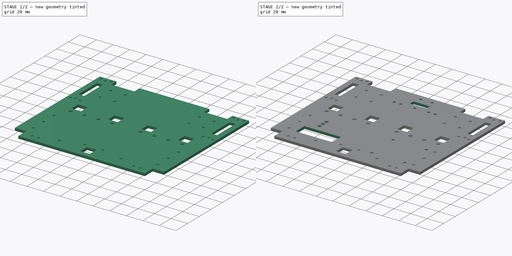
[diagram: build sequence overview — one tinted view per stage of 2, left to right]
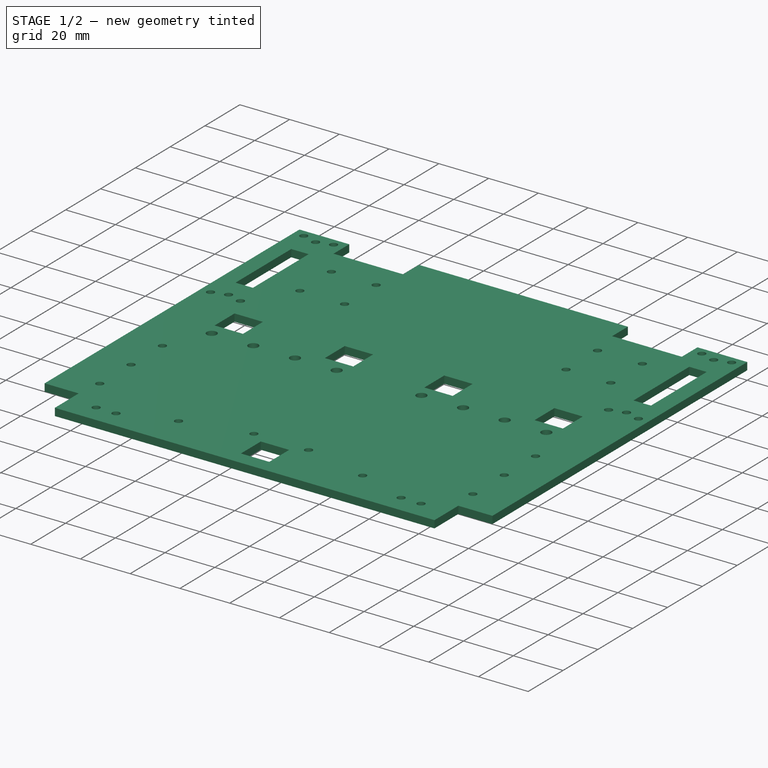
[diagram: stage 1 of 2 — iso view after this stage's code; geometry added in this stage tinted green]
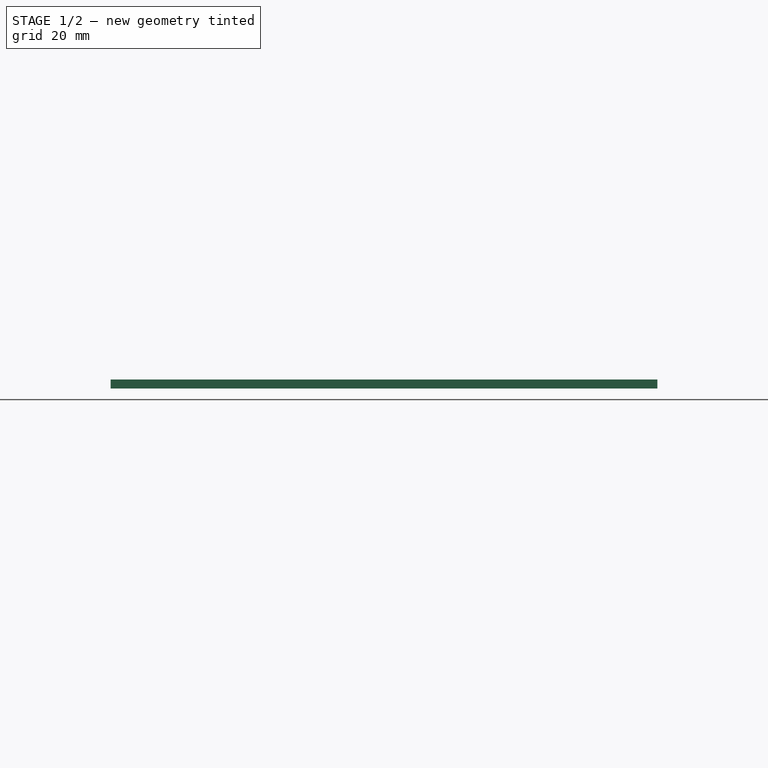
[diagram: stage 1 of 2 — front view after this stage's code; geometry added in this stage tinted green]
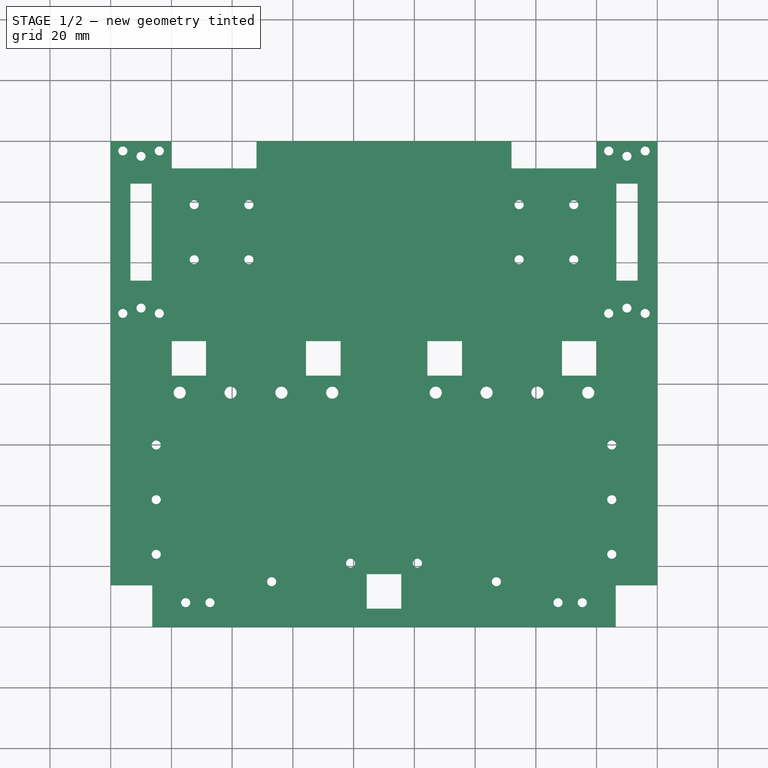
[diagram: stage 1 of 2 — top view after this stage's code; geometry added in this stage tinted green]
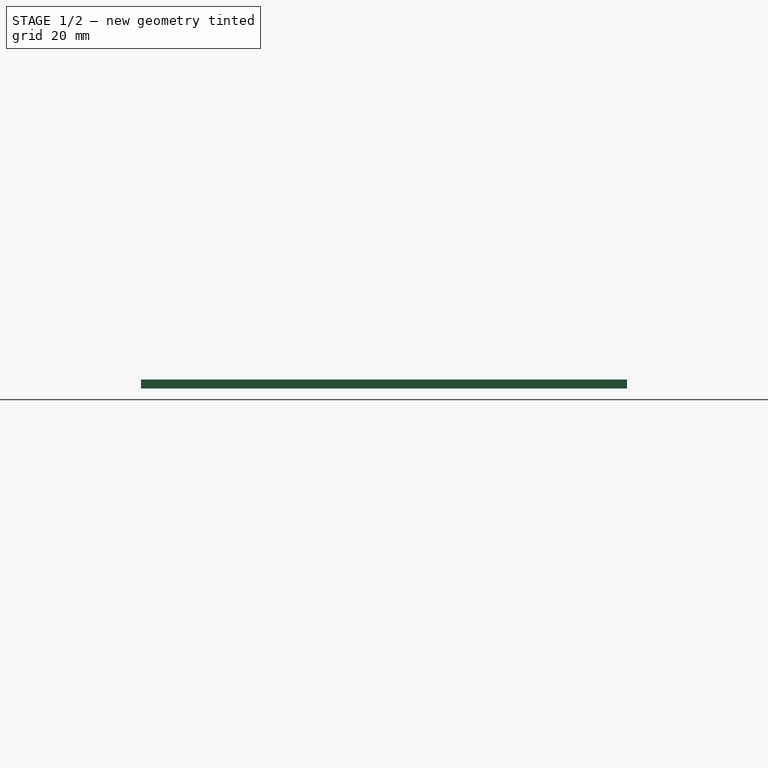
[diagram: stage 1 of 2 — right view after this stage's code; geometry added in this stage tinted green]
FCSTD DOCUMENT  (FreeCAD 0.16R6707 (Git))
Label: étage_haut
License: All rights reserved
LicenseURL: http://en.wikipedia.org/wiki/All_rights_reserved
objects: Drawing::FeatureViewPart×3, Sketcher::SketchObject×2, PartDesign::Pad×1, PartDesign::Mirrored×1, PartDesign::Pocket×1, Drawing::FeaturePage×1
note: 7 computed .brp shape members not serialized (recipe doc carries the construction recipe); baked Part::Feature solids carry a one-line shape summary decoded from their .brp

FEATURE [Sketcher::SketchObject] Sketch
  sketch-geometry (60):
    g0: GeomPoint [constr] X=10 Y=155 Z=0
    g1: GeomPoint [constr] X=10 Y=105 Z=0
    g2: Circle CenterX=10 CenterY=155 CenterZ=0 NormalX=0 NormalY=0 NormalZ=1 Radius=1.5
    g3: Circle CenterX=10 CenterY=105 CenterZ=0 NormalX=0 NormalY=0 NormalZ=1 Radius=1.5
    g4: LineSegment StartX=6.5 StartY=146 StartZ=0 EndX=13.5 EndY=146 EndZ=0
    g5: LineSegment StartX=13.5 StartY=146 StartZ=0 EndX=13.5 EndY=114 EndZ=0
    g6: LineSegment StartX=13.5 StartY=114 StartZ=0 EndX=6.5 EndY=114 EndZ=0
    g7: LineSegment StartX=6.5 StartY=114 StartZ=0 EndX=6.5 EndY=146 EndZ=0
    g8: GeomPoint [constr] X=27.5 Y=139.05 Z=0
    g9: GeomPoint [constr] X=45.5 Y=139.05 Z=0
    g10: GeomPoint [constr] X=27.5 Y=120.95 Z=0
    g11: GeomPoint [constr] X=45.5 Y=120.95 Z=0
    g12: GeomPoint [constr] X=16.5 Y=151.15 Z=0
    g13: GeomPoint [constr] X=16.5 Y=130 Z=0
    g14: Circle CenterX=27.5 CenterY=139.05 CenterZ=0 NormalX=0 NormalY=0 NormalZ=1 Radius=1.5
    g15: Circle CenterX=45.5 CenterY=139.05 CenterZ=0 NormalX=0 NormalY=0 NormalZ=1 Radius=1.5
    g16: Circle CenterX=27.5 CenterY=120.95 CenterZ=0 NormalX=0 NormalY=0 NormalZ=1 Radius=1.5
    g17: Circle CenterX=45.5 CenterY=120.95 CenterZ=0 NormalX=0 NormalY=0 NormalZ=1 Radius=1.5
    g18: GeomPoint [constr] X=0 Y=153.5 Z=0
    g19: Circle CenterX=4 CenterY=156.75 CenterZ=0 NormalX=0 NormalY=0 NormalZ=1 Radius=1.5
    g20: Circle CenterX=16 CenterY=156.75 CenterZ=0 NormalX=0 NormalY=0 NormalZ=1 Radius=1.5
    g21: GeomPoint [constr] X=20 Y=153.5 Z=0
    g22: GeomPoint [constr] X=0 Y=106.5 Z=0
    g23: GeomPoint [constr] X=20 Y=106.5 Z=0
    g24: Circle CenterX=4 CenterY=103.25 CenterZ=0 NormalX=0 NormalY=0 NormalZ=1 Radius=1.5
    g25: Circle CenterX=16 CenterY=103.25 CenterZ=0 NormalX=0 NormalY=0 NormalZ=1 Radius=1.5
    g26: LineSegment StartX=90 StartY=160 StartZ=0 EndX=90 EndY=17.4 EndZ=0
    g27: LineSegment StartX=90 StartY=17.4 StartZ=0 EndX=84.3 EndY=17.4 EndZ=0
    g28: LineSegment StartX=84.3 StartY=17.4 StartZ=0 EndX=84.3 EndY=6 EndZ=0
    g29: LineSegment StartX=20 StartY=94.15 StartZ=0 EndX=31.4 EndY=94.15 EndZ=0
    g30: LineSegment StartX=31.4 StartY=94.15 StartZ=0 EndX=31.4 EndY=82.75 EndZ=0
    g31: LineSegment StartX=31.4 StartY=82.75 StartZ=0 EndX=20 EndY=82.75 EndZ=0
    g32: LineSegment StartX=20 StartY=82.75 StartZ=0 EndX=20 EndY=94.15 EndZ=0
    g33: LineSegment StartX=64.3 StartY=94.15 StartZ=0 EndX=75.7 EndY=94.15 EndZ=0
    g34: LineSegment StartX=75.7 StartY=94.15 StartZ=0 EndX=75.7 EndY=82.75 EndZ=0
    g35: LineSegment StartX=75.7 StartY=82.75 StartZ=0 EndX=64.3 EndY=82.75 EndZ=0
    g36: LineSegment StartX=64.3 StartY=82.75 StartZ=0 EndX=64.3 EndY=94.15 EndZ=0
    g37: LineSegment StartX=84.3 StartY=6 StartZ=0 EndX=90 EndY=6 EndZ=0
    g38: LineSegment StartX=90 StartY=6 StartZ=0 EndX=90 EndY=0 EndZ=0
    g39: LineSegment StartX=90 StartY=0 StartZ=0 EndX=13.7 EndY=0 EndZ=0
    g40: LineSegment StartX=13.7 StartY=0 StartZ=0 EndX=13.7 EndY=13.7 EndZ=0
    g41: LineSegment StartX=13.7 StartY=13.7 StartZ=0 EndX=0 EndY=13.7 EndZ=0
    g42: LineSegment StartX=0 StartY=13.7 StartZ=0 EndX=0 EndY=160 EndZ=0
    g43: Circle CenterX=24.7 CenterY=8 CenterZ=0 NormalX=0 NormalY=0 NormalZ=1 Radius=1.5
    g44: Circle CenterX=32.7 CenterY=8 CenterZ=0 NormalX=0 NormalY=0 NormalZ=1 Radius=1.5
    g45: Circle CenterX=79 CenterY=21 CenterZ=0 NormalX=0 NormalY=0 NormalZ=1 Radius=1.5
    g46: Circle CenterX=22.74 CenterY=77.15 CenterZ=0 NormalX=0 NormalY=0 NormalZ=1 Radius=2
    g47: Circle CenterX=39.48 CenterY=77.15 CenterZ=0 NormalX=0 NormalY=0 NormalZ=1 Radius=2
    g48: Circle CenterX=56.22 CenterY=77.15 CenterZ=0 NormalX=0 NormalY=0 NormalZ=1 Radius=2
    g49: Circle CenterX=72.96 CenterY=77.15 CenterZ=0 NormalX=0 NormalY=0 NormalZ=1 Radius=2
    g50: Circle CenterX=53 CenterY=14.9 CenterZ=0 NormalX=0 NormalY=0 NormalZ=1 Radius=1.5
    g51: Circle CenterX=15 CenterY=59.91 CenterZ=0 NormalX=0 NormalY=0 NormalZ=1 Radius=1.5
    g52: Circle CenterX=15 CenterY=41.91 CenterZ=0 NormalX=0 NormalY=0 NormalZ=1 Radius=1.5
    g53: Circle CenterX=15 CenterY=23.91 CenterZ=0 NormalX=0 NormalY=0 NormalZ=1 Radius=1.5
    g54: GeomPoint [constr] X=55 Y=160 Z=0
    g55: LineSegment StartX=0 StartY=160 StartZ=0 EndX=20 EndY=160 EndZ=0
    g56: LineSegment StartX=20 StartY=160 StartZ=0 EndX=20 EndY=151 EndZ=0
    g57: LineSegment StartX=20 StartY=151 StartZ=0 EndX=48 EndY=151 EndZ=0
    g58: LineSegment StartX=48 StartY=151 StartZ=0 EndX=48 EndY=160 EndZ=0
    g59: LineSegment StartX=48 StartY=160 StartZ=0 EndX=90 EndY=160 EndZ=0
  constraints (161):
    c: DistanceX(g0,g1) = 0
    c: DistanceY(g1,g0) = 50
    c: DistanceX(g42,g0) = 10
    c: DistanceY(g0,g42) = 5
    c: Coincident(g2,g0)
    c: Coincident(g3,g1)
    c: Radius(g2) = 1.5
    c: Equal(g2,g3)
    c: Coincident(g4,g5)
    c: Coincident(g5,g6)
    c: Coincident(g6,g7)
    c: Coincident(g7,g4)
    c: Horizontal(g4)
    c: Horizontal(g6)
    c: Vertical(g5)
    c: Vertical(g7)
    c: DistanceX(g4) = 6.5
    c: DistanceY(g4,g42) = 14
    c: Distance(g7) = 32
    c: Distance(g6) = 7
    c: DistanceY(g9,g8) = 0
    c: DistanceY(g11,g10) = 0
    c: DistanceX(g8,g9) = 18
    c: DistanceX(g10,g11) = 18
    c: DistanceX(g8,g10) = 0
    c: DistanceY(g10,g8) = 18.1
    c: DistanceY(g8,g12) = 12.1
    c: DistanceX(g12,g8) = 11
    c: DistanceY(g13,g12) = 21.15
    c: DistanceX(g13,g12) = 0
    c: DistanceY(g13,g4) = 16
    c: Coincident(g14,g8)
    c: Coincident(g15,g9)
    c: Coincident(g16,g10)
    c: Coincident(g17,g11)
    c: Radius(g17) = 1.5
    c: Equal(g17,g15)
    c: Equal(g17,g14)
    c: Equal(g17,g16)
    c: DistanceX(g4,g13) = 3
    c: DistanceX(g18,g0) = 10
    c: DistanceY(g0,g18) = -1.5
    c: DistanceX(g18,g19) = 4
    c: DistanceY(g18,g19) = 3.25
    c: DistanceY(g20,g19) = 0
    c: DistanceY(g18,g21) = 0
    c: DistanceX(g18,g21) = 20
    c: DistanceX(g20,g21) = 4
    c: Radius(g19) = 1.5
    c: Equal(g19,g20)
    c: DistanceX(g22,g1) = 10
    c: DistanceY(g1,g22) = 1.5
    c: DistanceY(g23,g22) = 0
    c: DistanceX(g22,g23) = 20
    c: DistanceY(g25,g23) = 3.25
    c: DistanceX(g25,g23) = 4
    c: DistanceX(g22,g24) = 4
    c: DistanceY(g25,g24) = 0
    c: Radius(g24) = 1.5
    c: Equal(g24,g25)
    c: Vertical(g26)
    c: Coincident(g26,g27)
    c: Horizontal(g27)
    c: Coincident(g27,g28)
    c: Vertical(g28)
    c: Distance(g27) = 5.7
    c: Distance(g28) = 11.4
    c: Coincident(g29,g30)
    c: Coincident(g30,g31)
    c: Coincident(g31,g32)
    c: Coincident(g32,g29)
    c: Horizontal(g29)
    c: Horizontal(g31)
    c: Vertical(g30)
    c: Vertical(g32)
    c: Coincident(g33,g34)
    c: Coincident(g34,g35)
    c: Coincident(g35,g36)
    c: Coincident(g36,g33)
    c: Horizontal(g33)
    c: Horizontal(g35)
    c: Vertical(g34)
    c: Vertical(g36)
    c: Distance(g29) = 11.4
    c: Distance(g30) = 11.4
    c: Distance(g33) = 11.4
    c: Distance(g36) = 11.4
    c: DistanceX(g29,g33) = 32.9
    c: DistanceY(g33,g29) = 0
    c: DistanceX(g29) = 20
    c: Coincident(g28,g37)
    c: Horizontal(g37)
    c: Coincident(g37,g38)
    c: Vertical(g38)
    c: DistanceX(g26,g37) = 0
    c: DistanceY(g37) = 6
    c: DistanceY(g27,g34) = 65.35
    c: DistanceY(g42) = 160
    c: DistanceX(g42) = 0
    c: DistanceY(g38) = 0
    c: Coincident(g38,g39)
    c: Horizontal(g39)
    c: Coincident(g39,g40)
    c: Vertical(g40)
    c: Coincident(g40,g41)
    c: Horizontal(g41)
    c: Coincident(g42,g41)
    c: Vertical(g42)
    c: Distance(g41) = 13.7
    c: Distance(g40) = 13.7
    c: Radius(g44) = 1.5
    c: Equal(g44,g43)
    c: Equal(g44,g45)
    c: DistanceY(g43,g44) = 0
    c: DistanceX(g43,g44) = 8
    c: DistanceX(g40,g43) = 11
    c: DistanceY(g43,g40) = 5.7
    c: DistanceX(g45,g27) = 5.3
    c: Radius(g49) = 2
    c: Equal(g49,g48)
    c: Equal(g49,g47)
    c: Equal(g49,g46)
    c: DistanceY(g46,g47) = 0
    c: DistanceY(g47,g48) = 0
    c: DistanceY(g48,g49) = 0
    c: DistanceX(g46,g47) = 16.74
    c: DistanceX(g47,g48) = 16.74
    c: DistanceX(g48,g49) = 16.74
    c: DistanceX(g46) = 22.74
    c: DistanceY(g46,g29) = 17
    c: DistanceY(g28,g45) = 15
    c: DistanceX(g52,g51) = 0
    c: DistanceX(g52,g53) = 0
    c: DistanceY(g50) = 14.9
    c: DistanceX(g40,g50) = 39.3
    c: Radius(g51) = 1.5
    c: Equal(g51,g52)
    c: Equal(g51,g53)
    c: Equal(g51,g50)
    c: DistanceX(g53) = 15
    c: DistanceY(g40,g53) = 10.21
    c: DistanceY(g53,g52) = 18
    c: DistanceY(g52,g51) = 18
    c: DistanceY(g54,g42) = 0
    c: DistanceX(g54) = 55
    c: DistanceX(g26) = 90
    c: DistanceY(g26) = 160
    c: Coincident(g42,g55)
    c: Horizontal(g55)
    c: Coincident(g55,g56)
    c: Vertical(g56)
    c: Coincident(g56,g57)
    c: Horizontal(g57)
    c: Coincident(g57,g58)
    c: Vertical(g58)
    c: Coincident(g58,g59)
    c: Coincident(g59,g26)
    c: Horizontal(g59)
    c: DistanceX(g57) = 48
    c: Distance(g58) = 9
    c: Distance(g55) = 20
FEATURE [PartDesign::Pad] Pad
  Length = 3
  Length2 = 100
  Sketch = -> Sketch
  Type = 0
FEATURE [PartDesign::Mirrored] Mirrored
  MirrorPlane = -> Pad [Face1]
  Originals = -> [Pad]
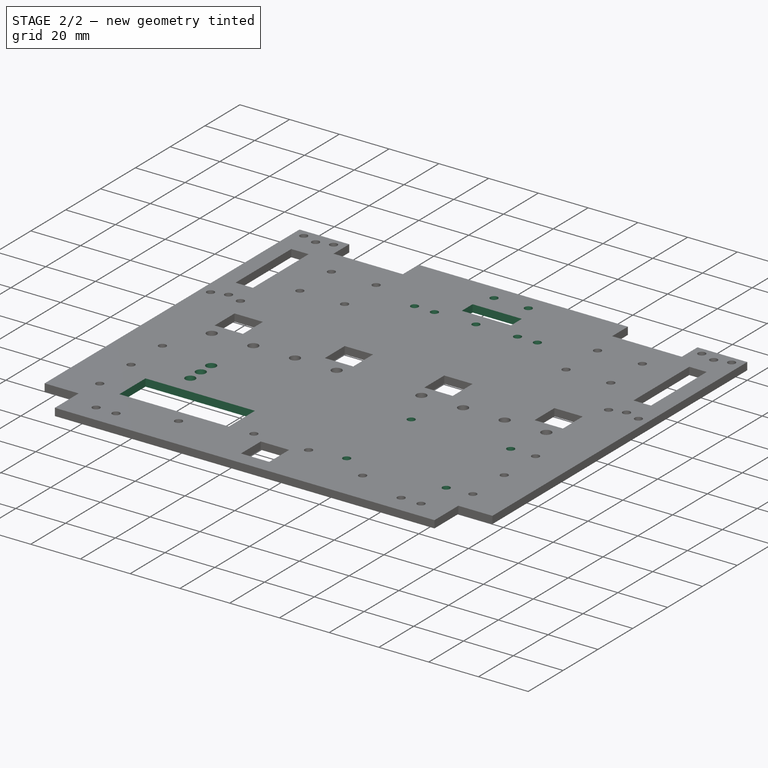
[diagram: stage 2 of 2 — iso view after this stage's code; geometry added in this stage tinted green]
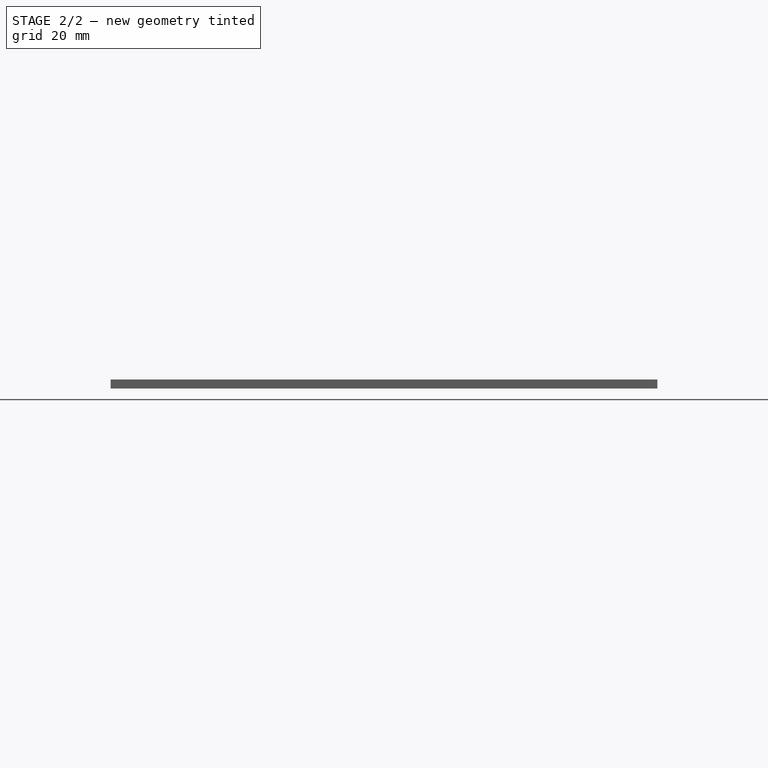
[diagram: stage 2 of 2 — front view after this stage's code; geometry added in this stage tinted green]
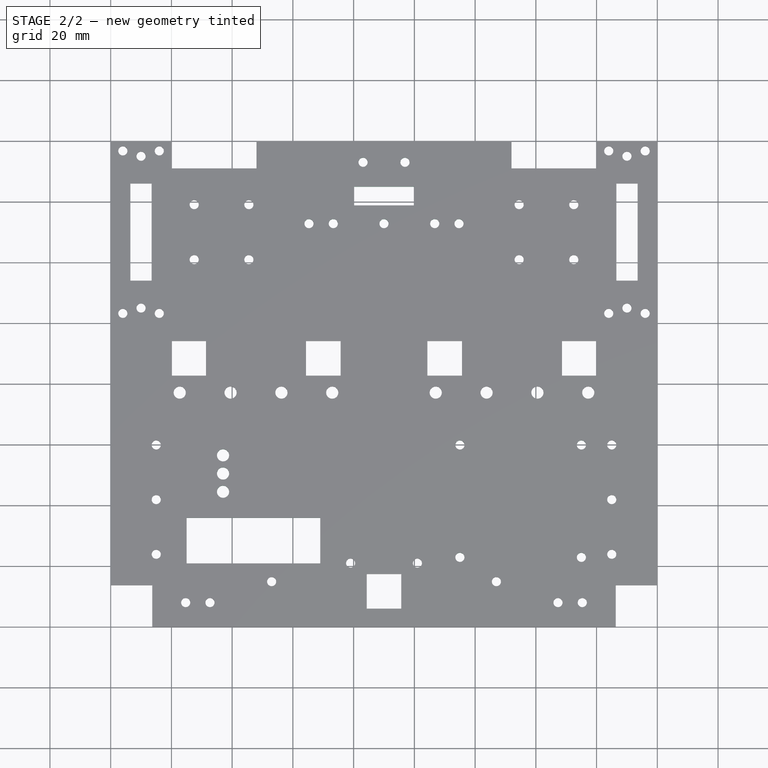
[diagram: stage 2 of 2 — top view after this stage's code; geometry added in this stage tinted green]
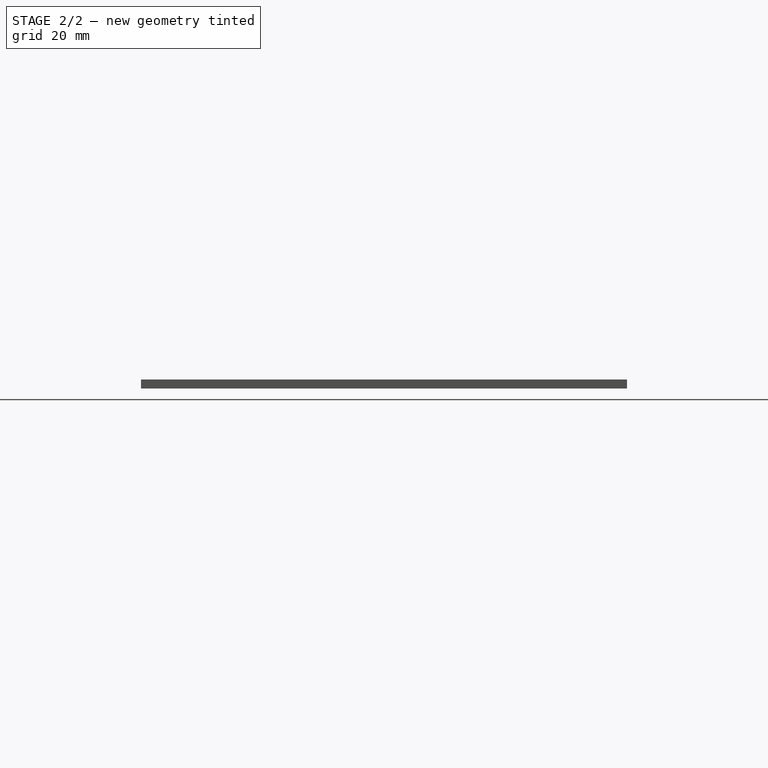
[diagram: stage 2 of 2 — right view after this stage's code; geometry added in this stage tinted green]
FEATURE [Sketcher::SketchObject] Sketch001
  Placement = pos=(0,0,3) rot=(0,0,1;0rad)
  Support = -> Mirrored [Face5]
  sketch-geometry (35):
    g0: Circle CenterX=90 CenterY=132.8 CenterZ=0 NormalX=0 NormalY=0 NormalZ=1 Radius=1.5
    g1: GeomPoint [constr] X=90 Y=160 Z=0
    g2: Circle CenterX=106.7 CenterY=132.8 CenterZ=0 NormalX=0 NormalY=0 NormalZ=1 Radius=1.5
    g3: Circle CenterX=114.7 CenterY=132.8 CenterZ=0 NormalX=0 NormalY=0 NormalZ=1 Radius=1.5
    g4: Circle CenterX=73.3 CenterY=132.8 CenterZ=0 NormalX=0 NormalY=0 NormalZ=1 Radius=1.5
    g5: Circle CenterX=65.3 CenterY=132.8 CenterZ=0 NormalX=0 NormalY=0 NormalZ=1 Radius=1.5
    g6: Circle CenterX=96.9 CenterY=153 CenterZ=0 NormalX=0 NormalY=0 NormalZ=1 Radius=1.5
    g7: Circle CenterX=83.1 CenterY=153 CenterZ=0 NormalX=0 NormalY=0 NormalZ=1 Radius=1.5
    g8: LineSegment StartX=80.1 StartY=145 StartZ=0 EndX=99.9 EndY=145 EndZ=0
    g9: LineSegment StartX=99.9 StartY=145 StartZ=0 EndX=99.9 EndY=138.8 EndZ=0
    g10: LineSegment StartX=99.9 StartY=138.8 StartZ=0 EndX=80.1 EndY=138.8 EndZ=0
    g11: LineSegment StartX=80.1 StartY=138.8 StartZ=0 EndX=80.1 EndY=145 EndZ=0
    g12: LineSegment StartX=25 StartY=35.9 StartZ=0 EndX=69 EndY=35.9 EndZ=0
    g13: LineSegment StartX=69 StartY=35.9 StartZ=0 EndX=69 EndY=20.9 EndZ=0
    g14: LineSegment StartX=69 StartY=20.9 StartZ=0 EndX=25 EndY=20.9 EndZ=0
    g15: LineSegment StartX=25 StartY=20.9 StartZ=0 EndX=25 EndY=35.9 EndZ=0
    g16: GeomPoint [constr] X=90 Y=0 Z=0
    g17: Circle CenterX=37 CenterY=56.5 CenterZ=0 NormalX=0 NormalY=0 NormalZ=1 Radius=2
    g18: Circle CenterX=37 CenterY=50.5 CenterZ=0 NormalX=0 NormalY=0 NormalZ=1 Radius=2
    g19: Circle CenterX=37 CenterY=44.5 CenterZ=0 NormalX=0 NormalY=0 NormalZ=1 Radius=2
    g20: LineSegment [constr] StartX=34 StartY=40 StartZ=0 EndX=70 EndY=40 EndZ=0
    g21: LineSegment [constr] StartX=70 StartY=40 StartZ=0 EndX=70 EndY=61 EndZ=0
    g22: LineSegment [constr] StartX=70 StartY=61 StartZ=0 EndX=34 EndY=61 EndZ=0
    g23: LineSegment [constr] StartX=34 StartY=61 StartZ=0 EndX=34 EndY=40 EndZ=0
    g24: GeomPoint [constr] X=59.5 Y=35 Z=0
    g25: GeomPoint [constr] X=180 Y=0 Z=0
    g26: GeomPoint [constr] X=160 Y=17.9 Z=0
    g27: LineSegment [constr] StartX=160 StartY=17.9 StartZ=0 EndX=110 EndY=17.9 EndZ=0
    g28: LineSegment [constr] StartX=110 StartY=17.9 StartZ=0 EndX=110 EndY=64.9 EndZ=0
    g29: LineSegment [constr] StartX=110 StartY=64.9 StartZ=0 EndX=160 EndY=64.9 EndZ=0
    g30: LineSegment [constr] StartX=160 StartY=64.9 StartZ=0 EndX=160 EndY=17.9 EndZ=0
    g31: Circle CenterX=115 CenterY=59.9 CenterZ=0 NormalX=0 NormalY=0 NormalZ=1 Radius=1.5
    g32: Circle CenterX=155 CenterY=59.9 CenterZ=0 NormalX=0 NormalY=0 NormalZ=1 Radius=1.5
    g33: Circle CenterX=115 CenterY=22.9 CenterZ=0 NormalX=0 NormalY=0 NormalZ=1 Radius=1.5
    g34: Circle CenterX=155 CenterY=22.9 CenterZ=0 NormalX=0 NormalY=0 NormalZ=1 Radius=1.5
  constraints (99):
    c: DistanceY(g1) = 160
    c: DistanceX(g1) = 90
    c: DistanceX(g0,g1) = 0
    c: DistanceY(g0,g1) = 27.2
    c: DistanceX(g5,g4) = 8
    c: DistanceX(g4,g0) = 16.7
    c: DistanceX(g0,g2) = 16.7
    c: DistanceX(g2,g3) = 8
    c: DistanceY(g4,g5) = 0
    c: DistanceY(g0,g4) = 0
    c: DistanceY(g0,g2) = 0
    c: DistanceY(g2,g3) = 0
    c: Radius(g5) = 1.5
    c: Equal(g5,g4)
    c: Equal(g5,g0)
    c: Equal(g5,g2)
    c: Equal(g5,g3)
    c: DistanceY(g6,g7) = 0
    c: DistanceX(g7,g6) = 13.8
    c: DistanceX(g1,g6) = 6.9
    c: DistanceY(g6,g1) = 7
    c: Radius(g6) = 1.5
    c: Equal(g6,g7)
    c: Coincident(g8,g9)
    c: Coincident(g9,g10)
    c: Coincident(g10,g11)
    c: Coincident(g11,g8)
    c: Horizontal(g8)
    c: Horizontal(g10)
    c: Vertical(g9)
    c: Vertical(g11)
    c: Distance(g8) = 19.8
    c: Distance(g11) = 6.2
    c: DistanceX(g8,g1) = 9.9
    c: DistanceY(g8,g7) = 8
    c: Coincident(g12,g13)
    c: Coincident(g13,g14)
    c: Coincident(g14,g15)
    c: Coincident(g15,g12)
    c: Horizontal(g12)
    c: Horizontal(g14)
    c: Vertical(g13)
    c: Vertical(g15)
    c: Distance(g12) = 44
    c: Distance(g15) = 15
    c: DistanceY(g14) = 20.9
    c: DistanceX(g14) = 25
    c: PointOnObject(g16,g-1)
    c: DistanceX(g16) = 90
    c: Coincident(g20,g21)
    c: Coincident(g21,g22)
    c: Coincident(g22,g23)
    c: Coincident(g23,g20)
    c: Horizontal(g20)
    c: Horizontal(g22)
    c: Vertical(g21)
    c: Vertical(g23)
    c: DistanceX(g17,g18) = 0
    c: DistanceX(g18,g19) = 0
    c: DistanceY(g17,g18) = -6
    c: DistanceY(g18,g19) = -6
    c: Radius(g17) = 2
    c: Equal(g17,g18)
    c: Equal(g17,g19)
    c: Distance(g23) = 21
    c: Distance(g20) = 36
    c: DistanceY(g17,g22) = 4.5
    c: DistanceX(g22,g17) = 3
    c: DistanceY(g20) = 40
    c: DistanceY(g24,g21) = 26
    c: DistanceX(g24,g21) = 10.5
    c: DistanceX(g20,g16) = 20
    c: PointOnObject(g25,g-1)
    c: DistanceX(g25) = 180
    c: DistanceY(g25,g26) = 17.9
    c: DistanceX(g26,g25) = 20
    c: Coincident(g27,g28)
    c: Coincident(g28,g29)
    c: Coincident(g29,g30)
    c: Coincident(g30,g27)
    c: Horizontal(g27)
    c: Horizontal(g29)
    c: Vertical(g28)
    c: Vertical(g30)
    c: Coincident(g27,g26)
    c: Distance(g30) = 47
    c: Distance(g27) = 50
    c: DistanceX(g28,g31) = 5
    c: DistanceY(g31,g28) = 5
    c: DistanceY(g27,g33) = 5
    c: DistanceX(g27,g33) = 5
    c: DistanceX(g32,g29) = 5
    c: DistanceY(g32,g29) = 5
    c: DistanceX(g34,g26) = 5
    c: DistanceY(g26,g34) = 5
    c: Radius(g31) = 1.5
    c: Equal(g31,g32)
    c: Equal(g31,g33)
    c: Equal(g31,g34)
FEATURE [PartDesign::Pocket] Pocket
  Length = 5
  Sketch = -> Sketch001
  Type = 1
FEATURE [Drawing::FeatureViewPart] Ortho  label="Ortho_0_0"
  Direction = (1,0,0)
  HiddenWidth = 0.15
  LineWidth = 0.35
  Rotation = -90
  Scale = 0.75
  ShowHiddenLines = false
  ShowSmoothLines = false
  Source = -> Pocket
  Tolerance = 0.05
  ViewResult = <g id="Ortho_0_0"\n   transform="rotate(-90,58.3333,200.417) translate(58.3333,200.417) scale(0.75,0.75)"\n  >\n<g   stroke="rgb(0, 0, 0)"\n   stroke-width="0.466667"\n   stroke-linecap="butt"\n   stroke-linejoin="miter"\n   fill="none"\n   transform="scale(1,-1)"\n  >\n<path id= "1" d=" M 0 -160 L 3 -160 " />\n<path id= "2" d=" M 0 -160 L 3 -160 " />\n<path id= "3" d=" M 0 0 L 0 -13.7 " />\n<path id= "4" d=" M 0 -13.7 L 0 -160 " />\n<path id= "5" d=" M 3 0 L 3 -13.7 " />\n<path id= "6" d=" M 3 -13.7 L 3 -160 " />\n<path id= "7" d=" M 0 0 L 3 0 " />\n<path id= "8" d=" M 0 -13.7 L 3 -13.7 " />\n<path id= "9" d=" M 0 -160 L 3 -160 " />\n</g>\n</g>
  Visible = true
  X = 58.3333
  Y = 200.417
FEATURE [Drawing::FeatureViewPart] Ortho001  label="Ortho_0_1"
  Direction = (0,0,1)
  HiddenWidth = 0.15
  LineWidth = 0.35
  Rotation = 90
  Scale = 0.75
  ShowHiddenLines = false
  ShowSmoothLines = false
  Source = -> Pocket
  Tolerance = 0.05
  ViewResult = <blob: 5499 chars omitted>
  Visible = true
  X = 58.3333
  Y = 36.5833
FEATURE [Drawing::FeatureViewPart] Ortho002  label="Ortho_1_1"
  Direction = (0.57735,0.57735,0.57735)
  HiddenWidth = 0.15
  LineWidth = 0.35
  Rotation = 120
  Scale = 0.75
  ShowHiddenLines = false
  ShowSmoothLines = false
  Source = -> Pocket
  Tolerance = 0.05
  ViewResult = <blob: 18557 chars omitted>
  Visible = true
  X = 299.47
  Y = 52.9502
FEATURE [Drawing::FeaturePage] Page
  EditableTexts = AUTHOR NAME | CREATION DATE | SUPERVISOR NAME | CHECK DATE | SCALE | WEIGHT | NUMBER | SHEET | TITLE | SUBTITLE
  Group = -> [Ortho,Ortho001,Ortho002]
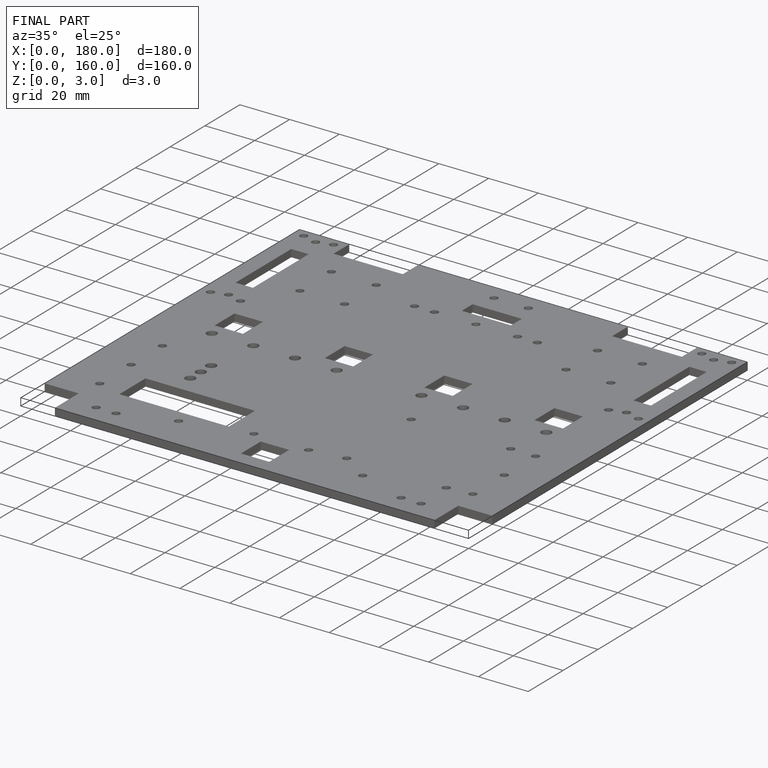
[diagram: finished part — iso view with bounding-box wireframe]
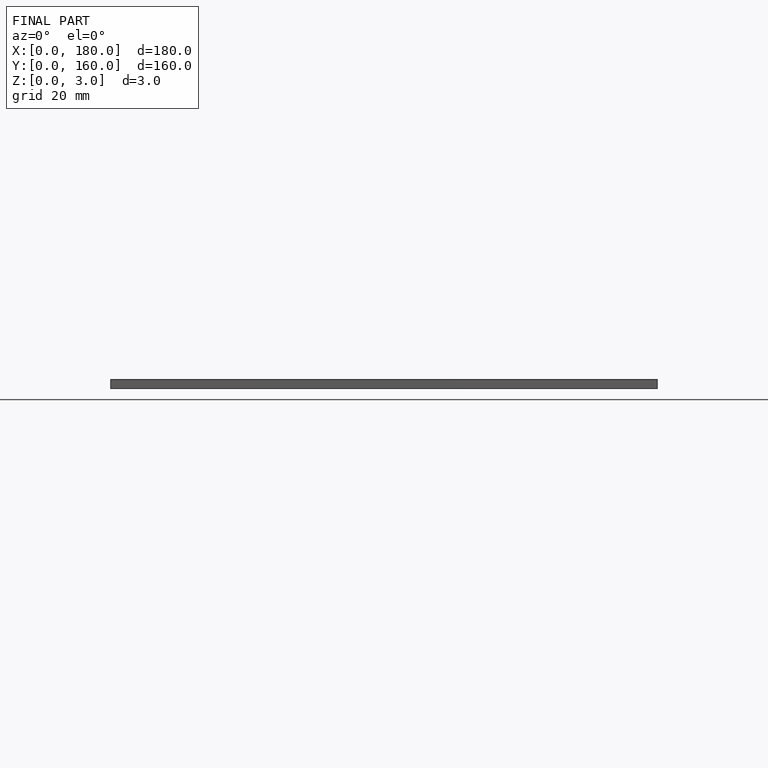
[diagram: finished part — front view with bounding-box wireframe]
